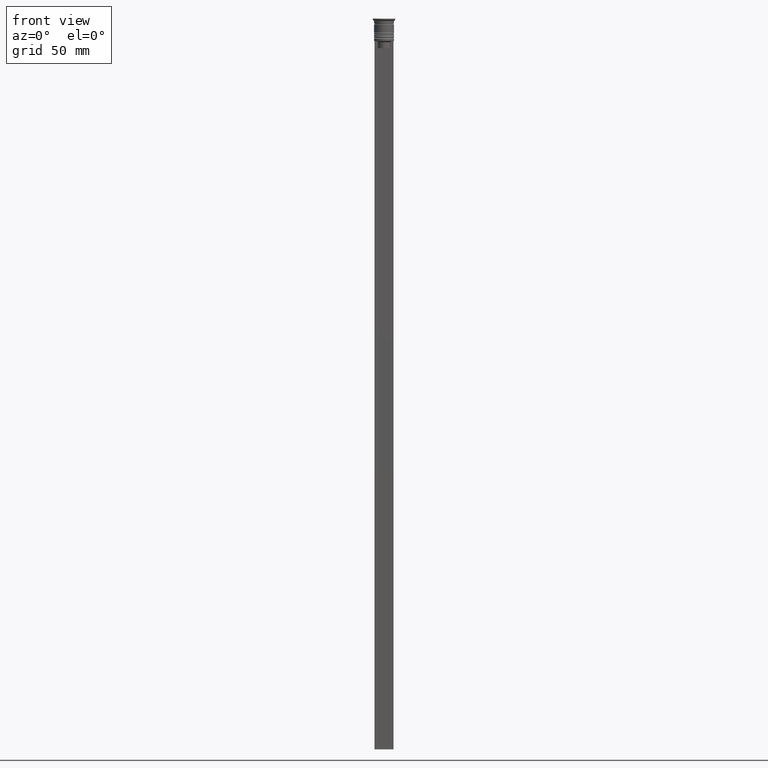
[diagram: clean part render]
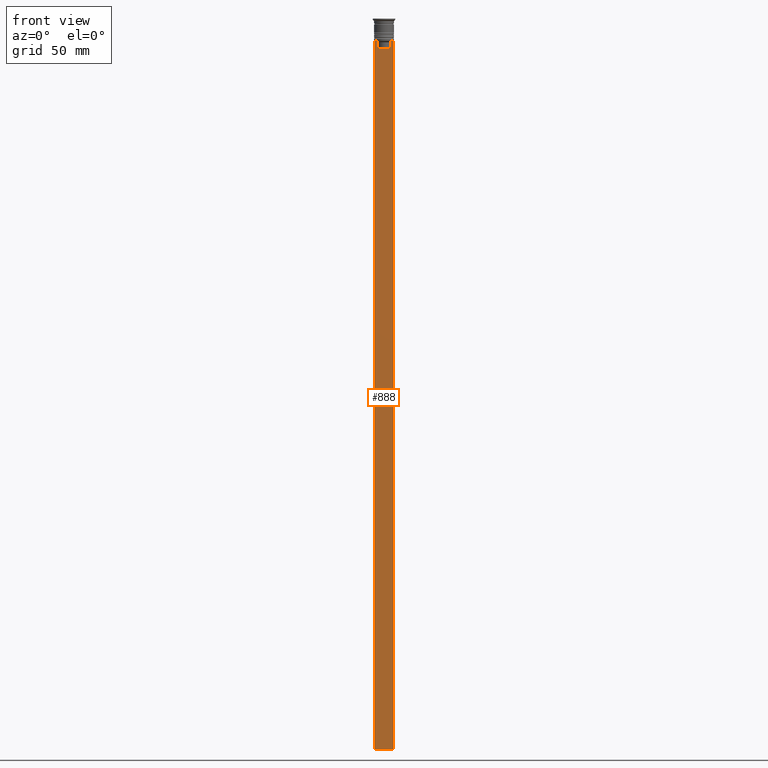
[diagram: same view with one face highlighted and labeled with its STEP entity id]
A machine part, front view. The second image highlights one B-rep face of the part: STEP entity #888.
In plain terms, the highlighted planar face has unit normal (0, -1, -0).
Its self-contained STEP definition (entity closure, byte-faithful):
#30 = CARTESIAN_POINT ( 'NONE',  ( 4.000000000000005329, -0.5000000000000004441, -309.5000000000000000 ) ) ;
#45 = CARTESIAN_POINT ( 'NONE',  ( 2.771864055700302476, -0.5000000000000004441, -9.833582414266679450 ) ) ;
#47 = EDGE_CURVE ( 'NONE', #1400, #1772, #129, .T. ) ;
#63 = DIRECTION ( 'NONE',  ( 1.000000000000000000, 0.000000000000000000, 0.000000000000000000 ) ) ;
#71 = CARTESIAN_POINT ( 'NONE',  ( -2.602402735934616906, -0.5000000000000004441, -12.50000000000000000 ) ) ;
#129 = LINE ( 'NONE', #723, #2162 ) ;
#133 = DIRECTION ( 'NONE',  ( 0.000000000000000000, 0.000000000000000000, -1.000000000000000000 ) ) ;
#218 = LINE ( 'NONE', #522, #2326 ) ;
#261 = VERTEX_POINT ( 'NONE', #30 ) ;
#281 = ORIENTED_EDGE ( 'NONE', *, *, #1388, .F. ) ;
#312 = VERTEX_POINT ( 'NONE', #71 ) ;
#336 = LINE ( 'NONE', #493, #1635 ) ;
#393 = DIRECTION ( 'NONE',  ( 0.000000000000000000, 0.000000000000000000, -1.000000000000000000 ) ) ;
#412 = ORIENTED_EDGE ( 'NONE', *, *, #1663, .F. ) ;
#459 = EDGE_CURVE ( 'NONE', #628, #312, #336, .T. ) ;
#460 = CARTESIAN_POINT ( 'NONE',  ( -2.771866350855961336, -0.5000000000000004441, -9.833580160334840059 ) ) ;
#493 = CARTESIAN_POINT ( 'NONE',  ( -2.602402735934616906, -0.5000000000000004441, 0.000000000000000000 ) ) ;
#495 = DIRECTION ( 'NONE',  ( -0.000000000000000000, -0.000000000000000000, 1.000000000000000000 ) ) ;
#522 = CARTESIAN_POINT ( 'NONE',  ( 4.000000000000005329, -0.5000000000000004441, -1.437742251701450202 ) ) ;
#577 = VERTEX_POINT ( 'NONE', #2070 ) ;
#619 = CARTESIAN_POINT ( 'NONE',  ( -2.602402735934616906, -0.5000000000000004441, -10.00000000000000178 ) ) ;
#621 = VECTOR ( 'NONE', #133, 1000.000000000000000 ) ;
#628 = VERTEX_POINT ( 'NONE', #1686 ) ;
#632 = EDGE_LOOP ( 'NONE', ( #2180, #712, #1578, #1308, #281, #1585, #2237, #1847, #412, #1866 ) ) ;
#669 = CARTESIAN_POINT ( 'NONE',  ( 4.000000000000005329, -0.5000000000000004441, -9.500000000000000000 ) ) ;
#680 = PLANE ( 'NONE',  #1980 ) ;
#702 = B_SPLINE_CURVE_WITH_KNOTS ( 'NONE', 3,
 ( #1008, #1765, #460, #619 ),
 .UNSPECIFIED., .F., .F.,
 ( 4, 4 ),
 ( 0.005378271293598281544, 0.006090816219556000749 ),
 .UNSPECIFIED. ) ;
#712 = ORIENTED_EDGE ( 'NONE', *, *, #1161, .F. ) ;
#723 = CARTESIAN_POINT ( 'NONE',  ( 2.602402735934616906, -0.5000000000000004441, 0.000000000000000000 ) ) ;
#769 = EDGE_CURVE ( 'NONE', #1121, #944, #2268, .T. ) ;
#773 = CARTESIAN_POINT ( 'NONE',  ( 4.000000000000005329, -0.5000000000000004441, -9.500000000000000000 ) ) ;
#790 = CARTESIAN_POINT ( 'NONE',  ( 3.110064308016796453, -0.5000000000000004441, -9.500000000000000000 ) ) ;
#799 = EDGE_CURVE ( 'NONE', #2186, #628, #702, .T. ) ;
#813 = VECTOR ( 'NONE', #63, 1000.000000000000000 ) ;
#834 = CARTESIAN_POINT ( 'NONE',  ( -3.999999999999994671, -0.5000000000000004441, -1.437742251701450202 ) ) ;
#852 = DIRECTION ( 'NONE',  ( 0.000000000000000000, 0.000000000000000000, -1.000000000000000000 ) ) ;
#888 = ADVANCED_FACE ( 'NONE', ( #1582 ), #680, .T. ) ;
#944 = VERTEX_POINT ( 'NONE', #669 ) ;
#996 = LINE ( 'NONE', #2108, #2322 ) ;
#1008 = CARTESIAN_POINT ( 'NONE',  ( -3.110064308016796453, -0.5000000000000004441, -9.500000000000000000 ) ) ;
#1046 = CARTESIAN_POINT ( 'NONE',  ( -3.110064308016796453, -0.5000000000000004441, -9.500000000000000000 ) ) ;
#1072 = LINE ( 'NONE', #1100, #2059 ) ;
#1100 = CARTESIAN_POINT ( 'NONE',  ( 0.000000000000000000, -0.5000000000000004441, -12.50000000000000000 ) ) ;
#1121 = VERTEX_POINT ( 'NONE', #790 ) ;
#1145 = EDGE_CURVE ( 'NONE', #1772, #1121, #1628, .T. ) ;
#1161 = EDGE_CURVE ( 'NONE', #1845, #2186, #1931, .T. ) ;
#1165 = EDGE_CURVE ( 'NONE', #261, #577, #996, .T. ) ;
#1205 = CARTESIAN_POINT ( 'NONE',  ( 4.000000000000005329, -0.5000000000000004441, -9.500000000000000000 ) ) ;
#1232 = EDGE_CURVE ( 'NONE', #1845, #577, #2339, .T. ) ;
#1308 = ORIENTED_EDGE ( 'NONE', *, *, #1165, .F. ) ;
#1318 = CARTESIAN_POINT ( 'NONE',  ( 2.602402735934616906, -0.5000000000000004441, -10.00000000000000178 ) ) ;
#1388 = EDGE_CURVE ( 'NONE', #944, #261, #218, .T. ) ;
#1400 = VERTEX_POINT ( 'NONE', #2382 ) ;
#1512 = CARTESIAN_POINT ( 'NONE',  ( -3.999999999999994671, -0.5000000000000004441, -9.500000000000000000 ) ) ;
#1578 = ORIENTED_EDGE ( 'NONE', *, *, #1232, .T. ) ;
#1582 = FACE_OUTER_BOUND ( 'NONE', #632, .T. ) ;
#1585 = ORIENTED_EDGE ( 'NONE', *, *, #769, .F. ) ;
#1626 = DIRECTION ( 'NONE',  ( 0.000000000000000000, 0.000000000000000000, -1.000000000000000000 ) ) ;
#1628 = B_SPLINE_CURVE_WITH_KNOTS ( 'NONE', 3,
 ( #2118, #45, #1726, #2275 ),
 .UNSPECIFIED., .F., .F.,
 ( 4, 4 ),
 ( 0.01295151922336847811, 0.01367164596165162602 ),
 .UNSPECIFIED. ) ;
#1635 = VECTOR ( 'NONE', #852, 1000.000000000000000 ) ;
#1663 = EDGE_CURVE ( 'NONE', #312, #1400, #1072, .T. ) ;
#1686 = CARTESIAN_POINT ( 'NONE',  ( -2.602402735934616906, -0.5000000000000004441, -10.00000000000000178 ) ) ;
#1726 = CARTESIAN_POINT ( 'NONE',  ( 2.941045828809988549, -0.5000000000000004441, -9.666875663357577864 ) ) ;
#1752 = VECTOR ( 'NONE', #2259, 1000.000000000000000 ) ;
#1765 = CARTESIAN_POINT ( 'NONE',  ( -2.941047749529104749, -0.5000000000000004441, -9.666873766989334982 ) ) ;
#1772 = VERTEX_POINT ( 'NONE', #1318 ) ;
#1786 = DIRECTION ( 'NONE',  ( 0.000000000000000000, -1.000000000000000000, -0.000000000000000000 ) ) ;
#1827 = DIRECTION ( 'NONE',  ( 1.000000000000000000, 0.000000000000000000, 0.000000000000000000 ) ) ;
#1845 = VERTEX_POINT ( 'NONE', #1512 ) ;
#1847 = ORIENTED_EDGE ( 'NONE', *, *, #47, .F. ) ;
#1866 = ORIENTED_EDGE ( 'NONE', *, *, #459, .F. ) ;
#1931 = LINE ( 'NONE', #773, #813 ) ;
#1980 = AXIS2_PLACEMENT_3D ( 'NONE', #2314, #1786, #1626 ) ;
#2059 = VECTOR ( 'NONE', #1827, 1000.000000000000000 ) ;
#2070 = CARTESIAN_POINT ( 'NONE',  ( -3.999999999999994671, -0.5000000000000004441, -309.5000000000000000 ) ) ;
#2077 = DIRECTION ( 'NONE',  ( -1.000000000000000000, 0.000000000000000000, 0.000000000000000000 ) ) ;
#2108 = CARTESIAN_POINT ( 'NONE',  ( 4.000000000000005329, -0.5000000000000004441, -309.5000000000000000 ) ) ;
#2118 = CARTESIAN_POINT ( 'NONE',  ( 2.602402735934616906, -0.5000000000000004441, -10.00000000000000178 ) ) ;
#2162 = VECTOR ( 'NONE', #495, 1000.000000000000000 ) ;
#2180 = ORIENTED_EDGE ( 'NONE', *, *, #799, .F. ) ;
#2186 = VERTEX_POINT ( 'NONE', #1046 ) ;
#2237 = ORIENTED_EDGE ( 'NONE', *, *, #1145, .F. ) ;
#2259 = DIRECTION ( 'NONE',  ( 1.000000000000000000, 0.000000000000000000, 0.000000000000000000 ) ) ;
#2268 = LINE ( 'NONE', #1205, #1752 ) ;
#2275 = CARTESIAN_POINT ( 'NONE',  ( 3.110064308016796453, -0.5000000000000004441, -9.500000000000000000 ) ) ;
#2314 = CARTESIAN_POINT ( 'NONE',  ( 4.000000000000005329, -0.5000000000000004441, -1.437742251701450202 ) ) ;
#2322 = VECTOR ( 'NONE', #2077, 1000.000000000000000 ) ;
#2326 = VECTOR ( 'NONE', #393, 1000.000000000000000 ) ;
#2339 = LINE ( 'NONE', #834, #621 ) ;
#2382 = CARTESIAN_POINT ( 'NONE',  ( 2.602402735934616906, -0.5000000000000004441, -12.50000000000000000 ) ) ;